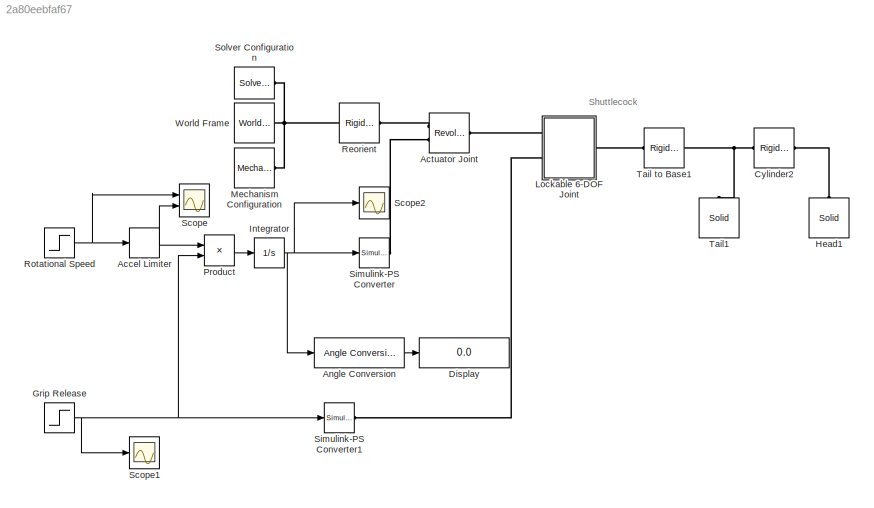
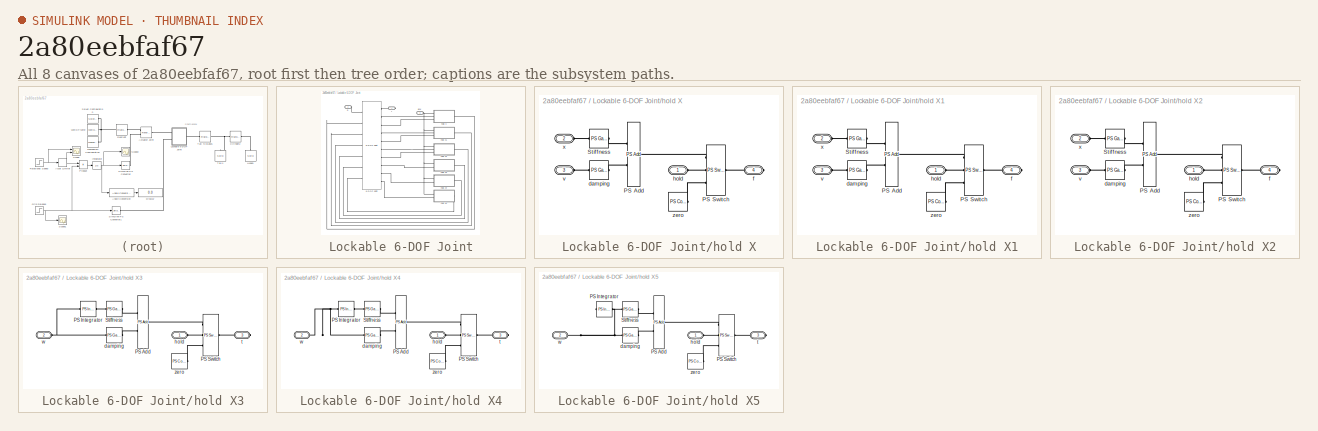
[diagram: thumbnail index - all 8 canvases of the model, root first then tree order]
MODEL slx_2a80eebfaf67
KIND model
CONFIG AbsTol = auto
CONFIG EnableMultiTasking = on
CONFIG FixedStep = auto
CONFIG MaxStep = auto
CONFIG MinStep = auto
CONFIG PreLoadFcn = goldenDragonData;
CONFIG RelTol = 1e-3
CONFIG SampleTimeConstraint = Unconstrained
CONFIG Solver = VariableStepAuto
CONFIG SolverName = VariableStepAuto
CONFIG StartTime = 0.0
CONFIG StopTime = 4
BLOCK [RateLimiter] Accel Limiter
  FallingSlewLimit = -5
  RisingSlewLimit = 5
  SampleTimeMode = inherited
BLOCK [Reference] Actuator Joint  REF=sm_lib/Joints/Revolute Joint
  Ports = [0, 0, 0, 0, 0, 2, 1]
  SourceBlock = sm_lib/Joints/Revolute Joint
  SourceProductBaseCode = MS
  SourceProductName = Simscape Multibody
  SourceType = Revolute Joint
BLOCK [Reference] Angle Conversion  REF=aerolibconvert2/Angle Conversion
  Ports = [1, 1]
  SourceBlock = aerolibconvert2/Angle Conversion
  SourceProductBaseCode = AE
  SourceProductName = Aerospace Blockset
  SourceType = Angle Conversion
BLOCK [Reference] Cylinder2  REF=sm_lib/Frames and
Transforms/Rigid
Transform
  Ports = [0, 0, 0, 0, 0, 1, 1]
  SourceBlock = sm_lib/Frames and\nTransforms/Rigid\nTransform
  SourceProductBaseCode = MS
  SourceProductName = Simscape Multibody
  SourceType = Rigid\nTransform
BLOCK [Display] Display
  Decimation = 1
  Ports = [1]
BLOCK [Step] Grip Release
  After = 0
  Before = 1
  SampleTime = 0
  Time = 2.6250
BLOCK [Reference] Head1  REF=sm_lib/Body Elements/Solid
  Ports = [0, 0, 0, 0, 0, 0, 1]
  SourceBlock = sm_lib/Body Elements/Solid
  SourceProductBaseCode = MS
  SourceProductName = Simscape Multibody
  SourceType = Solid
BLOCK [Integrator] Integrator
  Ports = [1, 1]
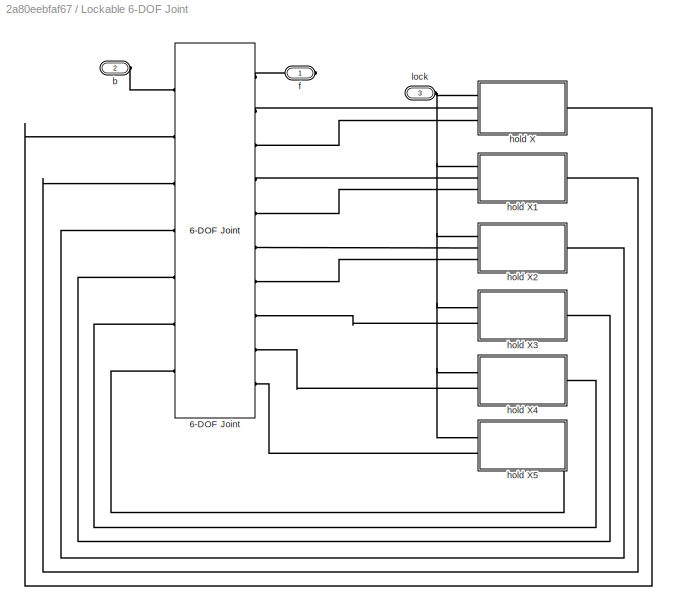
BLOCK [SubSystem] Lockable 6-DOF Joint
  Ports = [0, 0, 0, 0, 0, 2, 1]
  RequestExecContextInheritance = off
  Variant = off
BLOCK [Reference] Lockable 6-DOF Joint/6-DOF Joint  REF=sm_lib/Joints/6-DOF Joint
  Ports = [0, 0, 0, 0, 0, 7, 10]
  SourceBlock = sm_lib/Joints/6-DOF Joint
  SourceProductBaseCode = MS
  SourceProductName = Simscape Multibody
  SourceType = 6-DOF Joint
BLOCK [PMIOPort] Lockable 6-DOF Joint/b
  Port = 2
  Side = Left
BLOCK [PMIOPort] Lockable 6-DOF Joint/f
  Port = 1
  Side = Right
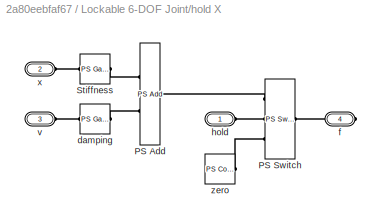
BLOCK [SubSystem] Lockable 6-DOF Joint/hold X
  Ports = [0, 0, 0, 0, 0, 3, 1]
  RequestExecContextInheritance = off
  Variant = off
BLOCK [Reference] Lockable 6-DOF Joint/hold X/PS Add  REF=fl_lib/Physical Signals/Functions/PS Add
  Ports = [0, 0, 0, 0, 0, 2, 1]
  SourceBlock = fl_lib/Physical Signals/Functions/PS Add
  SourceProductBaseCode = SS
  SourceProductName = Simscape
  SourceType = PS Add
BLOCK [Reference] Lockable 6-DOF Joint/hold X/PS Switch  REF=fl_lib/Physical Signals/Nonlinear Operators/PS Switch
  Ports = [0, 0, 0, 0, 0, 3, 1]
  SourceBlock = fl_lib/Physical Signals/Nonlinear Operators/PS Switch
  SourceProductBaseCode = SS
  SourceProductName = Simscape
  SourceType = PS Switch
BLOCK [Reference] Lockable 6-DOF Joint/hold X/Stiffness  REF=fl_lib/Physical Signals/Functions/PS Gain
  Ports = [0, 0, 0, 0, 0, 1, 1]
  SourceBlock = fl_lib/Physical Signals/Functions/PS Gain
  SourceProductBaseCode = SS
  SourceProductName = Simscape
  SourceType = PS Gain
BLOCK [Reference] Lockable 6-DOF Joint/hold X/damping  REF=fl_lib/Physical Signals/Functions/PS Gain
  Ports = [0, 0, 0, 0, 0, 1, 1]
  SourceBlock = fl_lib/Physical Signals/Functions/PS Gain
  SourceProductBaseCode = SS
  SourceProductName = Simscape
  SourceType = PS Gain
BLOCK [PMIOPort] Lockable 6-DOF Joint/hold X/f
  Port = 4
  Side = Right
BLOCK [PMIOPort] Lockable 6-DOF Joint/hold X/hold
  Port = 1
  Side = Left
BLOCK [PMIOPort] Lockable 6-DOF Joint/hold X/v
  Port = 3
  Side = Left
BLOCK [PMIOPort] Lockable 6-DOF Joint/hold X/x
  Port = 2
  Side = Left
BLOCK [Reference] Lockable 6-DOF Joint/hold X/zero  REF=fl_lib/Physical Signals/Sources/PS Constant
  Ports = [0, 0, 0, 0, 0, 0, 1]
  SourceBlock = fl_lib/Physical Signals/Sources/PS Constant
  SourceProductBaseCode = SS
  SourceProductName = Simscape
  SourceType = PS Constant
BLOCK [SubSystem] Lockable 6-DOF Joint/hold X1
  Ports = [0, 0, 0, 0, 0, 3, 1]
  RequestExecContextInheritance = off
  Variant = off
BLOCK [Reference] Lockable 6-DOF Joint/hold X1/PS Add  REF=fl_lib/Physical Signals/Functions/PS Add
  Ports = [0, 0, 0, 0, 0, 2, 1]
  SourceBlock = fl_lib/Physical Signals/Functions/PS Add
  SourceProductBaseCode = SS
  SourceProductName = Simscape
  SourceType = PS Add
BLOCK [Reference] Lockable 6-DOF Joint/hold X1/PS Switch  REF=fl_lib/Physical Signals/Nonlinear Operators/PS Switch
  Ports = [0, 0, 0, 0, 0, 3, 1]
  SourceBlock = fl_lib/Physical Signals/Nonlinear Operators/PS Switch
  SourceProductBaseCode = SS
  SourceProductName = Simscape
  SourceType = PS Switch
BLOCK [Reference] Lockable 6-DOF Joint/hold X1/Stiffness  REF=fl_lib/Physical Signals/Functions/PS Gain
  Ports = [0, 0, 0, 0, 0, 1, 1]
  SourceBlock = fl_lib/Physical Signals/Functions/PS Gain
  SourceProductBaseCode = SS
  SourceProductName = Simscape
  SourceType = PS Gain
BLOCK [Reference] Lockable 6-DOF Joint/hold X1/damping  REF=fl_lib/Physical Signals/Functions/PS Gain
  Ports = [0, 0, 0, 0, 0, 1, 1]
  SourceBlock = fl_lib/Physical Signals/Functions/PS Gain
  SourceProductBaseCode = SS
  SourceProductName = Simscape
  SourceType = PS Gain
BLOCK [PMIOPort] Lockable 6-DOF Joint/hold X1/f
  Port = 4
  Side = Right
BLOCK [PMIOPort] Lockable 6-DOF Joint/hold X1/hold
  Port = 1
  Side = Left
BLOCK [PMIOPort] Lockable 6-DOF Joint/hold X1/v
  Port = 3
  Side = Left
BLOCK [PMIOPort] Lockable 6-DOF Joint/hold X1/x
  Port = 2
  Side = Left
BLOCK [Reference] Lockable 6-DOF Joint/hold X1/zero  REF=fl_lib/Physical Signals/Sources/PS Constant
  Ports = [0, 0, 0, 0, 0, 0, 1]
  SourceBlock = fl_lib/Physical Signals/Sources/PS Constant
  SourceProductBaseCode = SS
  SourceProductName = Simscape
  SourceType = PS Constant
BLOCK [SubSystem] Lockable 6-DOF Joint/hold X2
  Ports = [0, 0, 0, 0, 0, 3, 1]
  RequestExecContextInheritance = off
  Variant = off
BLOCK [Reference] Lockable 6-DOF Joint/hold X2/PS Add  REF=fl_lib/Physical Signals/Functions/PS Add
  Ports = [0, 0, 0, 0, 0, 2, 1]
  SourceBlock = fl_lib/Physical Signals/Functions/PS Add
  SourceProductBaseCode = SS
  SourceProductName = Simscape
  SourceType = PS Add
BLOCK [Reference] Lockable 6-DOF Joint/hold X2/PS Switch  REF=fl_lib/Physical Signals/Nonlinear Operators/PS Switch
  Ports = [0, 0, 0, 0, 0, 3, 1]
  SourceBlock = fl_lib/Physical Signals/Nonlinear Operators/PS Switch
  SourceProductBaseCode = SS
  SourceProductName = Simscape
  SourceType = PS Switch
BLOCK [Reference] Lockable 6-DOF Joint/hold X2/Stiffness  REF=fl_lib/Physical Signals/Functions/PS Gain
  Ports = [0, 0, 0, 0, 0, 1, 1]
  SourceBlock = fl_lib/Physical Signals/Functions/PS Gain
  SourceProductBaseCode = SS
  SourceProductName = Simscape
  SourceType = PS Gain
BLOCK [Reference] Lockable 6-DOF Joint/hold X2/damping  REF=fl_lib/Physical Signals/Functions/PS Gain
  Ports = [0, 0, 0, 0, 0, 1, 1]
  SourceBlock = fl_lib/Physical Signals/Functions/PS Gain
  SourceProductBaseCode = SS
  SourceProductName = Simscape
  SourceType = PS Gain
BLOCK [PMIOPort] Lockable 6-DOF Joint/hold X2/f
  Port = 4
  Side = Right
BLOCK [PMIOPort] Lockable 6-DOF Joint/hold X2/hold
  Port = 1
  Side = Left
BLOCK [PMIOPort] Lockable 6-DOF Joint/hold X2/v
  Port = 3
  Side = Left
BLOCK [PMIOPort] Lockable 6-DOF Joint/hold X2/x
  Port = 2
  Side = Left
BLOCK [Reference] Lockable 6-DOF Joint/hold X2/zero  REF=fl_lib/Physical Signals/Sources/PS Constant
  Ports = [0, 0, 0, 0, 0, 0, 1]
  SourceBlock = fl_lib/Physical Signals/Sources/PS Constant
  SourceProductBaseCode = SS
  SourceProductName = Simscape
  SourceType = PS Constant
BLOCK [SubSystem] Lockable 6-DOF Joint/hold X3
  Ports = [0, 0, 0, 0, 0, 2, 1]
  RequestExecContextInheritance = off
  Variant = off
BLOCK [Reference] Lockable 6-DOF Joint/hold X3/PS Add  REF=fl_lib/Physical Signals/Functions/PS Add
  Ports = [0, 0, 0, 0, 0, 2, 1]
  SourceBlock = fl_lib/Physical Signals/Functions/PS Add
  SourceProductBaseCode = SS
  SourceProductName = Simscape
  SourceType = PS Add
BLOCK [Reference] Lockable 6-DOF Joint/hold X3/PS Integrator  REF=fl_lib/Physical Signals/Linear Operators/PS Integrator
  Ports = [0, 0, 0, 0, 0, 1, 1]
  SourceBlock = fl_lib/Physical Signals/Linear Operators/PS Integrator
  SourceProductBaseCode = SS
  SourceProductName = Simscape
  SourceType = PS Integrator
BLOCK [Reference] Lockable 6-DOF Joint/hold X3/PS Switch  REF=fl_lib/Physical Signals/Nonlinear Operators/PS Switch
  Ports = [0, 0, 0, 0, 0, 3, 1]
  SourceBlock = fl_lib/Physical Signals/Nonlinear Operators/PS Switch
  SourceProductBaseCode = SS
  SourceProductName = Simscape
  SourceType = PS Switch
BLOCK [Reference] Lockable 6-DOF Joint/hold X3/Stiffness  REF=fl_lib/Physical Signals/Functions/PS Gain
  Ports = [0, 0, 0, 0, 0, 1, 1]
  SourceBlock = fl_lib/Physical Signals/Functions/PS Gain
  SourceProductBaseCode = SS
  SourceProductName = Simscape
  SourceType = PS Gain
BLOCK [Reference] Lockable 6-DOF Joint/hold X3/damping  REF=fl_lib/Physical Signals/Functions/PS Gain
  Ports = [0, 0, 0, 0, 0, 1, 1]
  SourceBlock = fl_lib/Physical Signals/Functions/PS Gain
  SourceProductBaseCode = SS
  SourceProductName = Simscape
  SourceType = PS Gain
BLOCK [PMIOPort] Lockable 6-DOF Joint/hold X3/hold
  Port = 1
  Side = Left
BLOCK [PMIOPort] Lockable 6-DOF Joint/hold X3/t
  Port = 3
  Side = Right
BLOCK [PMIOPort] Lockable 6-DOF Joint/hold X3/w
  Port = 2
  Side = Left
BLOCK [Reference] Lockable 6-DOF Joint/hold X3/zero  REF=fl_lib/Physical Signals/Sources/PS Constant
  Ports = [0, 0, 0, 0, 0, 0, 1]
  SourceBlock = fl_lib/Physical Signals/Sources/PS Constant
  SourceProductBaseCode = SS
  SourceProductName = Simscape
  SourceType = PS Constant
BLOCK [SubSystem] Lockable 6-DOF Joint/hold X4
  Ports = [0, 0, 0, 0, 0, 2, 1]
  RequestExecContextInheritance = off
  Variant = off
BLOCK [Reference] Lockable 6-DOF Joint/hold X4/PS Add  REF=fl_lib/Physical Signals/Functions/PS Add
  Ports = [0, 0, 0, 0, 0, 2, 1]
  SourceBlock = fl_lib/Physical Signals/Functions/PS Add
  SourceProductBaseCode = SS
  SourceProductName = Simscape
  SourceType = PS Add
BLOCK [Reference] Lockable 6-DOF Joint/hold X4/PS Integrator  REF=fl_lib/Physical Signals/Linear Operators/PS Integrator
  Ports = [0, 0, 0, 0, 0, 1, 1]
  SourceBlock = fl_lib/Physical Signals/Linear Operators/PS Integrator
  SourceProductBaseCode = SS
  SourceProductName = Simscape
  SourceType = PS Integrator
BLOCK [Reference] Lockable 6-DOF Joint/hold X4/PS Switch  REF=fl_lib/Physical Signals/Nonlinear Operators/PS Switch
  Ports = [0, 0, 0, 0, 0, 3, 1]
  SourceBlock = fl_lib/Physical Signals/Nonlinear Operators/PS Switch
  SourceProductBaseCode = SS
  SourceProductName = Simscape
  SourceType = PS Switch
BLOCK [Reference] Lockable 6-DOF Joint/hold X4/Stiffness  REF=fl_lib/Physical Signals/Functions/PS Gain
  Ports = [0, 0, 0, 0, 0, 1, 1]
  SourceBlock = fl_lib/Physical Signals/Functions/PS Gain
  SourceProductBaseCode = SS
  SourceProductName = Simscape
  SourceType = PS Gain
BLOCK [Reference] Lockable 6-DOF Joint/hold X4/damping  REF=fl_lib/Physical Signals/Functions/PS Gain
  Ports = [0, 0, 0, 0, 0, 1, 1]
  SourceBlock = fl_lib/Physical Signals/Functions/PS Gain
  SourceProductBaseCode = SS
  SourceProductName = Simscape
  SourceType = PS Gain
BLOCK [PMIOPort] Lockable 6-DOF Joint/hold X4/hold
  Port = 1
  Side = Left
BLOCK [PMIOPort] Lockable 6-DOF Joint/hold X4/t
  Port = 3
  Side = Right
BLOCK [PMIOPort] Lockable 6-DOF Joint/hold X4/w
  Port = 2
  Side = Left
BLOCK [Reference] Lockable 6-DOF Joint/hold X4/zero  REF=fl_lib/Physical Signals/Sources/PS Constant
  Ports = [0, 0, 0, 0, 0, 0, 1]
  SourceBlock = fl_lib/Physical Signals/Sources/PS Constant
  SourceProductBaseCode = SS
  SourceProductName = Simscape
  SourceType = PS Constant
BLOCK [SubSystem] Lockable 6-DOF Joint/hold X5
  Ports = [0, 0, 0, 0, 0, 2, 1]
  RequestExecContextInheritance = off
  Variant = off
BLOCK [Reference] Lockable 6-DOF Joint/hold X5/PS Add  REF=fl_lib/Physical Signals/Functions/PS Add
  Ports = [0, 0, 0, 0, 0, 2, 1]
  SourceBlock = fl_lib/Physical Signals/Functions/PS Add
  SourceProductBaseCode = SS
  SourceProductName = Simscape
  SourceType = PS Add
BLOCK [Reference] Lockable 6-DOF Joint/hold X5/PS Integrator  REF=fl_lib/Physical Signals/Linear Operators/PS Integrator
  Ports = [0, 0, 0, 0, 0, 1, 1]
  SourceBlock = fl_lib/Physical Signals/Linear Operators/PS Integrator
  SourceProductBaseCode = SS
  SourceProductName = Simscape
  SourceType = PS Integrator
BLOCK [Reference] Lockable 6-DOF Joint/hold X5/PS Switch  REF=fl_lib/Physical Signals/Nonlinear Operators/PS Switch
  Ports = [0, 0, 0, 0, 0, 3, 1]
  SourceBlock = fl_lib/Physical Signals/Nonlinear Operators/PS Switch
  SourceProductBaseCode = SS
  SourceProductName = Simscape
  SourceType = PS Switch
BLOCK [Reference] Lockable 6-DOF Joint/hold X5/Stiffness  REF=fl_lib/Physical Signals/Functions/PS Gain
  Ports = [0, 0, 0, 0, 0, 1, 1]
  SourceBlock = fl_lib/Physical Signals/Functions/PS Gain
  SourceProductBaseCode = SS
  SourceProductName = Simscape
  SourceType = PS Gain
BLOCK [Reference] Lockable 6-DOF Joint/hold X5/damping  REF=fl_lib/Physical Signals/Functions/PS Gain
  Ports = [0, 0, 0, 0, 0, 1, 1]
  SourceBlock = fl_lib/Physical Signals/Functions/PS Gain
  SourceProductBaseCode = SS
  SourceProductName = Simscape
  SourceType = PS Gain
BLOCK [PMIOPort] Lockable 6-DOF Joint/hold X5/hold
  Port = 1
  Side = Left
BLOCK [PMIOPort] Lockable 6-DOF Joint/hold X5/t
  Port = 3
  Side = Right
BLOCK [PMIOPort] Lockable 6-DOF Joint/hold X5/w
  Port = 2
  Side = Left
BLOCK [Reference] Lockable 6-DOF Joint/hold X5/zero  REF=fl_lib/Physical Signals/Sources/PS Constant
  Ports = [0, 0, 0, 0, 0, 0, 1]
  SourceBlock = fl_lib/Physical Signals/Sources/PS Constant
  SourceProductBaseCode = SS
  SourceProductName = Simscape
  SourceType = PS Constant
BLOCK [PMIOPort] Lockable 6-DOF Joint/lock
  Port = 3
  Side = Left
BLOCK [Reference] Mechanism Configuration  REF=sm_lib/Utilities/Mechanism
Configuration
  Ports = [0, 0, 0, 0, 0, 0, 1]
  SourceBlock = sm_lib/Utilities/Mechanism\nConfiguration
  SourceProductBaseCode = MS
  SourceProductName = Simscape Multibody
  SourceType = Mechanism\nConfiguration
BLOCK [Product] Product
  InputSameDT = off
  OutDataTypeStr = Inherit: Inherit via internal rule
  Ports = [2, 1]
  RndMeth = Floor
  SaturateOnIntegerOverflow = off
BLOCK [Reference] Reorient  REF=sm_lib/Frames and
Transforms/Rigid
Transform
  Ports = [0, 0, 0, 0, 0, 1, 1]
  SourceBlock = sm_lib/Frames and\nTransforms/Rigid\nTransform
  SourceProductBaseCode = MS
  SourceProductName = Simscape Multibody
  SourceType = Rigid\nTransform
BLOCK [Step] Rotational Speed
  After = 30
  SampleTime = inputTs
  Time = 0
BLOCK [Scope] Scope
  NumInputPorts = 2
  Ports = [2]
  ScopeSpecificationString = Simulink.scopes.TimeScopeBlockCfg('CurrentConfiguration', extmgr.ConfigurationSet(extmgr.Configuration('Core','General UI',true),extmgr.Configuration('Core','Source UI',true),extmgr.Configuration('Sources','WiredSimulink',true),extmgr.Configuration('Visuals','Time Domain',true,'SerializedDisplays',{struct('MinYLimReal','-3.1875','MaxYLimReal','33.6875','YLabelReal','','MinYLimMag','0.00000','MaxYL...<+1406ch>
BLOCK [Scope] Scope1
  NumInputPorts = 1
  Ports = [1]
  ScopeSpecificationString = Simulink.scopes.TimeScopeBlockCfg('CurrentConfiguration', extmgr.ConfigurationSet(extmgr.Configuration('Core','General UI',true),extmgr.Configuration('Core','Source UI',true),extmgr.Configuration('Sources','WiredSimulink',true,'DataLoggingVariableName','ScopeData1'),extmgr.Configuration('Visuals','Time Domain',true,'SerializedDisplays',{struct('MinYLimReal','-0.125','MaxYLimReal','1.125','YLabelRe...<+1389ch>
BLOCK [Scope] Scope2
  NumInputPorts = 1
  Ports = [1]
  ScopeSpecificationString = Simulink.scopes.TimeScopeBlockCfg('CurrentConfiguration', extmgr.ConfigurationSet(extmgr.Configuration('Core','General UI',true),extmgr.Configuration('Core','Source UI',true),extmgr.Configuration('Sources','WiredSimulink',true,'DataLoggingVariableName','ScopeData1'),extmgr.Configuration('Visuals','Time Domain',true,'SerializedDisplays',{struct('MinYLimReal','-2.23594','MaxYLimReal','20.12344','YLa...<+1429ch>
BLOCK [Reference] Simulink-PS Converter  REF=nesl_utility/Simulink-PS
Converter
  Ports = [1, 0, 0, 0, 0, 0, 1]
  SourceBlock = nesl_utility/Simulink-PS\nConverter
  SourceProductBaseCode = SS
  SourceProductName = Simscape
  SourceType = Simulink-PS\nConverter
BLOCK [Reference] Simulink-PS Converter1  REF=nesl_utility/Simulink-PS
Converter
  Ports = [1, 0, 0, 0, 0, 0, 1]
  SourceBlock = nesl_utility/Simulink-PS\nConverter
  SourceProductBaseCode = SS
  SourceProductName = Simscape
  SourceType = Simulink-PS\nConverter
BLOCK [Reference] Solver Configuration  REF=nesl_utility/Solver
Configuration
  Ports = [0, 0, 0, 0, 0, 0, 1]
  SourceBlock = nesl_utility/Solver\nConfiguration
  SourceProductBaseCode = SS
  SourceProductName = Simscape
  SourceType = Solver\nConfiguration
BLOCK [Reference] Tail to Base1  REF=sm_lib/Frames and
Transforms/Rigid
Transform
  Ports = [0, 0, 0, 0, 0, 1, 1]
  SourceBlock = sm_lib/Frames and\nTransforms/Rigid\nTransform
  SourceProductBaseCode = MS
  SourceProductName = Simscape Multibody
  SourceType = Rigid\nTransform
BLOCK [Reference] Tail1  REF=sm_lib/Body Elements/Solid
  Ports = [0, 0, 0, 0, 0, 0, 1]
  SourceBlock = sm_lib/Body Elements/Solid
  SourceProductBaseCode = MS
  SourceProductName = Simscape Multibody
  SourceType = Solid
BLOCK [Reference] World Frame  REF=sm_lib/Frames and
Transforms/World Frame
  Ports = [0, 0, 0, 0, 0, 0, 1]
  SourceBlock = sm_lib/Frames and\nTransforms/World Frame
  SourceProductBaseCode = MS
  SourceProductName = Simscape Multibody
  SourceType = World Frame
ANNOTATION (root): Shuttlecock
NET Accel Limiter:1 -> Product:1, Scope:2
LINE Angle Conversion:1 -> Display:1
NET Grip Release:1 -> Product:2, Scope1:1, Simulink-PS Converter1:1
NET Integrator:1 -> Angle Conversion:1, Scope2:1, Simulink-PS Converter:1
LINE Product:1 -> Integrator:1
NET Rotational Speed:1 -> Accel Limiter:1, Scope:1
PLINE Actuator Joint:LConn1 -- Reorient:RConn1
PLINE Actuator Joint:LConn2 -- Simulink-PS Converter:RConn1
PLINE Actuator Joint:RConn1 -- Lockable 6-DOF Joint:LConn1
PNET net1: Cylinder2:LConn1 -- Tail to Base1:LConn1 -- Tail1:RConn1
PLINE Cylinder2:RConn1 -- Head1:RConn1
PLINE Lockable 6-DOF Joint/6-DOF Joint:LConn1 -- Lockable 6-DOF Joint/b:RConn1
PLINE Lockable 6-DOF Joint/6-DOF Joint:LConn2 -- Lockable 6-DOF Joint/hold X:RConn1
PLINE Lockable 6-DOF Joint/6-DOF Joint:LConn3 -- Lockable 6-DOF Joint/hold X1:RConn1
PLINE Lockable 6-DOF Joint/6-DOF Joint:LConn4 -- Lockable 6-DOF Joint/hold X2:RConn1
PLINE Lockable 6-DOF Joint/6-DOF Joint:LConn5 -- Lockable 6-DOF Joint/hold X3:RConn1
PLINE Lockable 6-DOF Joint/6-DOF Joint:LConn6 -- Lockable 6-DOF Joint/hold X4:RConn1
PLINE Lockable 6-DOF Joint/6-DOF Joint:LConn7 -- Lockable 6-DOF Joint/hold X5:RConn1
PLINE Lockable 6-DOF Joint/6-DOF Joint:RConn1 -- Lockable 6-DOF Joint/f:RConn1
PLINE Lockable 6-DOF Joint/6-DOF Joint:RConn10 -- Lockable 6-DOF Joint/hold X5:LConn2
PLINE Lockable 6-DOF Joint/6-DOF Joint:RConn2 -- Lockable 6-DOF Joint/hold X:LConn2
PLINE Lockable 6-DOF Joint/6-DOF Joint:RConn3 -- Lockable 6-DOF Joint/hold X:LConn3
PLINE Lockable 6-DOF Joint/6-DOF Joint:RConn4 -- Lockable 6-DOF Joint/hold X1:LConn2
PLINE Lockable 6-DOF Joint/6-DOF Joint:RConn5 -- Lockable 6-DOF Joint/hold X1:LConn3
PLINE Lockable 6-DOF Joint/6-DOF Joint:RConn6 -- Lockable 6-DOF Joint/hold X2:LConn2
PLINE Lockable 6-DOF Joint/6-DOF Joint:RConn7 -- Lockable 6-DOF Joint/hold X2:LConn3
PLINE Lockable 6-DOF Joint/6-DOF Joint:RConn8 -- Lockable 6-DOF Joint/hold X3:LConn2
PLINE Lockable 6-DOF Joint/6-DOF Joint:RConn9 -- Lockable 6-DOF Joint/hold X4:LConn2
PLINE Lockable 6-DOF Joint/hold X/PS Add:LConn1 -- Lockable 6-DOF Joint/hold X/Stiffness:RConn1
PLINE Lockable 6-DOF Joint/hold X/PS Add:LConn2 -- Lockable 6-DOF Joint/hold X/damping:RConn1
PLINE Lockable 6-DOF Joint/hold X/PS Add:RConn1 -- Lockable 6-DOF Joint/hold X/PS Switch:LConn1
PLINE Lockable 6-DOF Joint/hold X/PS Switch:LConn2 -- Lockable 6-DOF Joint/hold X/hold:RConn1
PLINE Lockable 6-DOF Joint/hold X/PS Switch:LConn3 -- Lockable 6-DOF Joint/hold X/zero:RConn1
PLINE Lockable 6-DOF Joint/hold X/PS Switch:RConn1 -- Lockable 6-DOF Joint/hold X/f:RConn1
PLINE Lockable 6-DOF Joint/hold X/Stiffness:LConn1 -- Lockable 6-DOF Joint/hold X/x:RConn1
PLINE Lockable 6-DOF Joint/hold X/damping:LConn1 -- Lockable 6-DOF Joint/hold X/v:RConn1
PLINE Lockable 6-DOF Joint/hold X1/PS Add:LConn1 -- Lockable 6-DOF Joint/hold X1/Stiffness:RConn1
PLINE Lockable 6-DOF Joint/hold X1/PS Add:LConn2 -- Lockable 6-DOF Joint/hold X1/damping:RConn1
PLINE Lockable 6-DOF Joint/hold X1/PS Add:RConn1 -- Lockable 6-DOF Joint/hold X1/PS Switch:LConn1
PLINE Lockable 6-DOF Joint/hold X1/PS Switch:LConn2 -- Lockable 6-DOF Joint/hold X1/hold:RConn1
PLINE Lockable 6-DOF Joint/hold X1/PS Switch:LConn3 -- Lockable 6-DOF Joint/hold X1/zero:RConn1
PLINE Lockable 6-DOF Joint/hold X1/PS Switch:RConn1 -- Lockable 6-DOF Joint/hold X1/f:RConn1
PLINE Lockable 6-DOF Joint/hold X1/Stiffness:LConn1 -- Lockable 6-DOF Joint/hold X1/x:RConn1
PLINE Lockable 6-DOF Joint/hold X1/damping:LConn1 -- Lockable 6-DOF Joint/hold X1/v:RConn1
PNET net2: Lockable 6-DOF Joint/hold X1:LConn1 -- Lockable 6-DOF Joint/hold X2:LConn1 -- Lockable 6-DOF Joint/hold X3:LConn1 -- Lockable 6-DOF Joint/hold X4:LConn1 -- Lockable 6-DOF Joint/hold X5:LConn1 -- Lockable 6-DOF Joint/hold X:LConn1 -- Lockable 6-DOF Joint/lock:RConn1
PLINE Lockable 6-DOF Joint/hold X2/PS Add:LConn1 -- Lockable 6-DOF Joint/hold X2/Stiffness:RConn1
PLINE Lockable 6-DOF Joint/hold X2/PS Add:LConn2 -- Lockable 6-DOF Joint/hold X2/damping:RConn1
PLINE Lockable 6-DOF Joint/hold X2/PS Add:RConn1 -- Lockable 6-DOF Joint/hold X2/PS Switch:LConn1
PLINE Lockable 6-DOF Joint/hold X2/PS Switch:LConn2 -- Lockable 6-DOF Joint/hold X2/hold:RConn1
PLINE Lockable 6-DOF Joint/hold X2/PS Switch:LConn3 -- Lockable 6-DOF Joint/hold X2/zero:RConn1
PLINE Lockable 6-DOF Joint/hold X2/PS Switch:RConn1 -- Lockable 6-DOF Joint/hold X2/f:RConn1
PLINE Lockable 6-DOF Joint/hold X2/Stiffness:LConn1 -- Lockable 6-DOF Joint/hold X2/x:RConn1
PLINE Lockable 6-DOF Joint/hold X2/damping:LConn1 -- Lockable 6-DOF Joint/hold X2/v:RConn1
PLINE Lockable 6-DOF Joint/hold X3/PS Add:LConn1 -- Lockable 6-DOF Joint/hold X3/Stiffness:RConn1
PLINE Lockable 6-DOF Joint/hold X3/PS Add:LConn2 -- Lockable 6-DOF Joint/hold X3/damping:RConn1
PLINE Lockable 6-DOF Joint/hold X3/PS Add:RConn1 -- Lockable 6-DOF Joint/hold X3/PS Switch:LConn1
PNET net3: Lockable 6-DOF Joint/hold X3/PS Integrator:LConn1 -- Lockable 6-DOF Joint/hold X3/damping:LConn1 -- Lockable 6-DOF Joint/hold X3/w:RConn1
PLINE Lockable 6-DOF Joint/hold X3/PS Integrator:RConn1 -- Lockable 6-DOF Joint/hold X3/Stiffness:LConn1
PLINE Lockable 6-DOF Joint/hold X3/PS Switch:LConn2 -- Lockable 6-DOF Joint/hold X3/hold:RConn1
PLINE Lockable 6-DOF Joint/hold X3/PS Switch:LConn3 -- Lockable 6-DOF Joint/hold X3/zero:RConn1
PLINE Lockable 6-DOF Joint/hold X3/PS Switch:RConn1 -- Lockable 6-DOF Joint/hold X3/t:RConn1
PLINE Lockable 6-DOF Joint/hold X4/PS Add:LConn1 -- Lockable 6-DOF Joint/hold X4/Stiffness:RConn1
PLINE Lockable 6-DOF Joint/hold X4/PS Add:LConn2 -- Lockable 6-DOF Joint/hold X4/damping:RConn1
PLINE Lockable 6-DOF Joint/hold X4/PS Add:RConn1 -- Lockable 6-DOF Joint/hold X4/PS Switch:LConn1
PNET net4: Lockable 6-DOF Joint/hold X4/PS Integrator:LConn1 -- Lockable 6-DOF Joint/hold X4/damping:LConn1 -- Lockable 6-DOF Joint/hold X4/w:RConn1
PLINE Lockable 6-DOF Joint/hold X4/PS Integrator:RConn1 -- Lockable 6-DOF Joint/hold X4/Stiffness:LConn1
PLINE Lockable 6-DOF Joint/hold X4/PS Switch:LConn2 -- Lockable 6-DOF Joint/hold X4/hold:RConn1
PLINE Lockable 6-DOF Joint/hold X4/PS Switch:LConn3 -- Lockable 6-DOF Joint/hold X4/zero:RConn1
PLINE Lockable 6-DOF Joint/hold X4/PS Switch:RConn1 -- Lockable 6-DOF Joint/hold X4/t:RConn1
PLINE Lockable 6-DOF Joint/hold X5/PS Add:LConn1 -- Lockable 6-DOF Joint/hold X5/Stiffness:RConn1
PLINE Lockable 6-DOF Joint/hold X5/PS Add:LConn2 -- Lockable 6-DOF Joint/hold X5/damping:RConn1
PLINE Lockable 6-DOF Joint/hold X5/PS Add:RConn1 -- Lockable 6-DOF Joint/hold X5/PS Switch:LConn1
PNET net5: Lockable 6-DOF Joint/hold X5/PS Integrator:LConn1 -- Lockable 6-DOF Joint/hold X5/damping:LConn1 -- Lockable 6-DOF Joint/hold X5/w:RConn1
PLINE Lockable 6-DOF Joint/hold X5/PS Integrator:RConn1 -- Lockable 6-DOF Joint/hold X5/Stiffness:LConn1
PLINE Lockable 6-DOF Joint/hold X5/PS Switch:LConn2 -- Lockable 6-DOF Joint/hold X5/hold:RConn1
PLINE Lockable 6-DOF Joint/hold X5/PS Switch:LConn3 -- Lockable 6-DOF Joint/hold X5/zero:RConn1
PLINE Lockable 6-DOF Joint/hold X5/PS Switch:RConn1 -- Lockable 6-DOF Joint/hold X5/t:RConn1
PLINE Lockable 6-DOF Joint:LConn2 -- Simulink-PS Converter1:RConn1
PLINE Lockable 6-DOF Joint:RConn1 -- Tail to Base1:RConn1
PNET net6: Mechanism Configuration:RConn1 -- Reorient:LConn1 -- Solver Configuration:RConn1 -- World Frame:RConn1
note: NET lines group one-source signal fan-out (src -> all destinations, sorted); 1:1 wires keep LINE; PNET lines group multi-terminal physical nets as a canonical sorted terminal list (undirected conserving connections); 2-terminal nets keep the pairwise PLINE form
